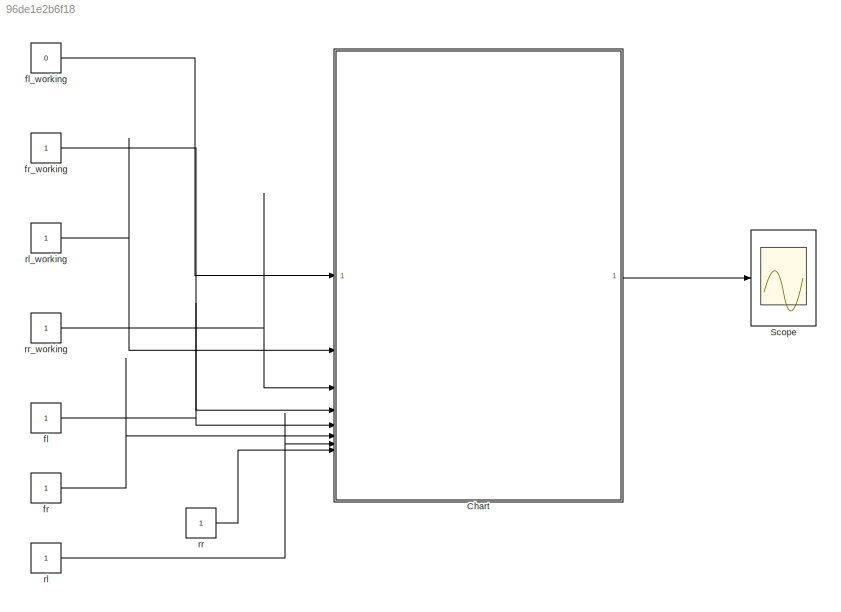
MODEL slx_96de1e2b6f18
KIND model
CONFIG AbsTol = auto
CONFIG EnableMultiTasking = off
CONFIG FixedStep = auto
CONFIG MaxStep = auto
CONFIG MinStep = auto
CONFIG RelTol = 1e-3
CONFIG SampleTimeConstraint = Unconstrained
CONFIG SolverName = VariableStepAuto
CONFIG StartTime = 0.0
CONFIG StopTime = 10.0
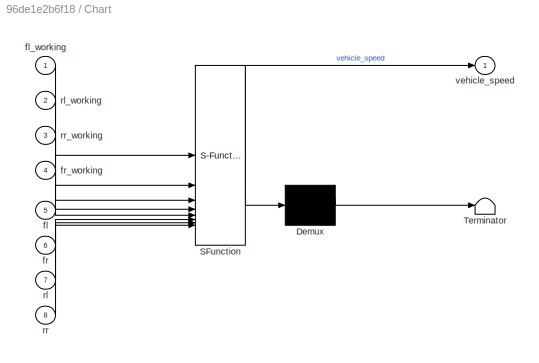
BLOCK [SubSystem] Chart
  ErrorFcn = Stateflow.Translate.translate
  PermitHierarchicalResolution = ExplicitOnly
  SFBlockType = Chart
  TreatAsAtomicUnit = on
BLOCK [Demux] Chart/ Demux 
  Outputs = 1
BLOCK [S-Function] Chart/ SFunction 
  EnableBusSupport = off
  FunctionName = sf_sfun
  PortCounts = [8 2]
  SFcnIsStateOwnerBlock = off
  SFunctionDeploymentMode = off
  Tag = Stateflow S-Function 3
BLOCK [Terminator] Chart/ Terminator 
BLOCK [Inport] Chart/fl
  Port = 5
BLOCK [Inport] Chart/fl_working
BLOCK [Inport] Chart/fr
  Port = 6
BLOCK [Inport] Chart/fr_working
  Port = 4
BLOCK [Inport] Chart/rl
  Port = 7
BLOCK [Inport] Chart/rl_working
  Port = 2
BLOCK [Inport] Chart/rr
  Port = 8
BLOCK [Inport] Chart/rr_working
  Port = 3
BLOCK [Outport] Chart/vehicle_speed
BLOCK [Scope] Scope
  Floating = off
  GraphicalSettings = {"GraphicalSettings":{"LegacySettings":true,"Style":{"Style":{"PlotType":"Auto"}}}}
  NumInputPorts = 1
  WasSavedAsWebScope = on
BLOCK [Constant] fl
  OutDataTypeStr = double
BLOCK [Constant] fl_working
  OutDataTypeStr = boolean
  Value = 0
BLOCK [Constant] fr
  OutDataTypeStr = double
BLOCK [Constant] fr_working
  OutDataTypeStr = boolean
BLOCK [Constant] rl
  OutDataTypeStr = double
BLOCK [Constant] rl_working
  OutDataTypeStr = boolean
BLOCK [Constant] rr
  OutDataTypeStr = double
BLOCK [Constant] rr_working
  OutDataTypeStr = boolean
LINE Chart:1 -> Scope:1
LINE fl:1 -> Chart:5
LINE fl_working:1 -> Chart:1
LINE fr:1 -> Chart:6
LINE fr_working:1 -> Chart:4
LINE rl:1 -> Chart:7
LINE rl_working:1 -> Chart:2
LINE rr:1 -> Chart:8
LINE rr_working:1 -> Chart:3
CHART Chart states=4 transitions=4
  STATE_LABEL 'AllSensorsWorking\nfl_working && fr_working && rl_working && rr_working\nvehicle_speed = (fl + fr + rl + rr) / 4;\n'
  STATE_LABEL 'TwoSensorsDown\n(fl_working + fr_working + rl_working + rr_working) == 2\nif fl_working && fr_working\n    vehicle_speed = (fl + fr)/2;\nelseif fl_working && rl_working\n    vehicle_speed = (fl + rl)/2;\nelseif fl_working && rr_working\n    vehicle_speed = (fl + rr)/2;\nelseif fr_working && rl_working\n    vehicle_speed = (fr + rl)/2;\nelseif fr_working && rr_working\n    vehicle_speed = (fr + rr)/2;\nelseif ...<+62ch>'
  STATE_LABEL 'ThreeOrMoreDown\n(fl_working + fr_working + rl_working + rr_working) <= 1\nvehicle_speed = 0;\n'
  STATE_LABEL 'OneSensorDown\n(~fl_working && fr_working && rl_working && rr_working)\n(~fr_working && fl_working && rl_working && rr_working)\n(~rl_working && fl_working && fr_working && rr_working)\n(~rr_working && fl_working && fr_working && rl_working)\nif ~fl_working\n    vehicle_speed = (fr + rl + rr)/3;\nelseif ~fr_working\n    vehicle_speed = (fl + rl + rr)/3;\nelseif ~rl_working\n    vehicle_speed = (fl + fr + rr...<+66ch>'
CHART  states=0 transitions=0
